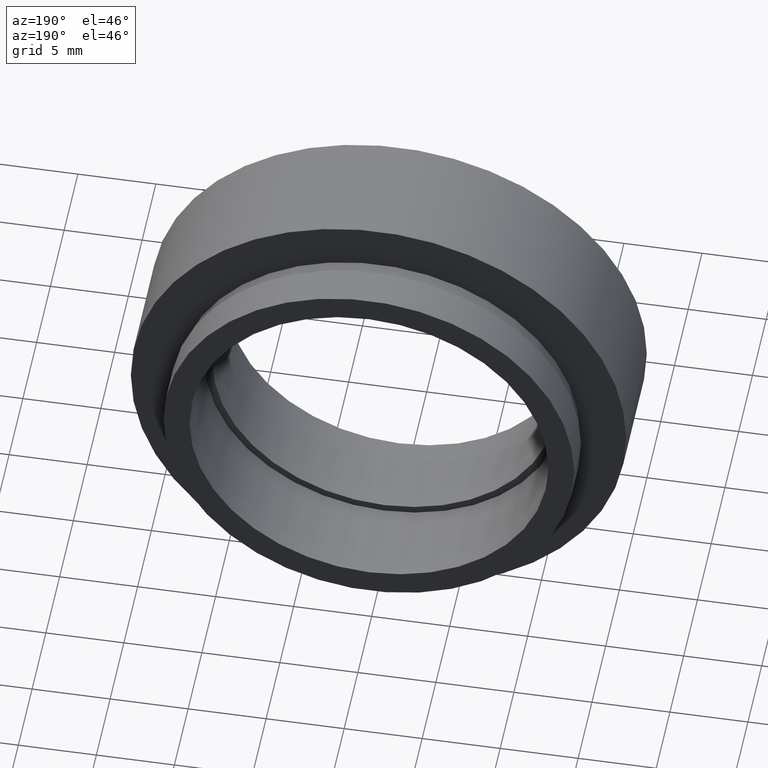
[diagram: clean part render]
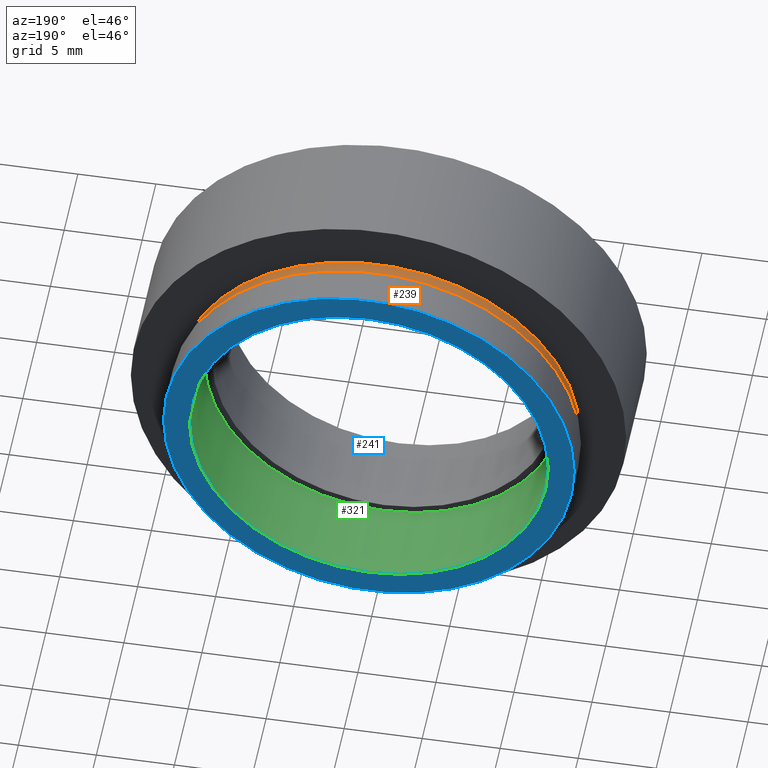
[diagram: same view with three faces highlighted in distinct colors, each labeled with its STEP entity id]
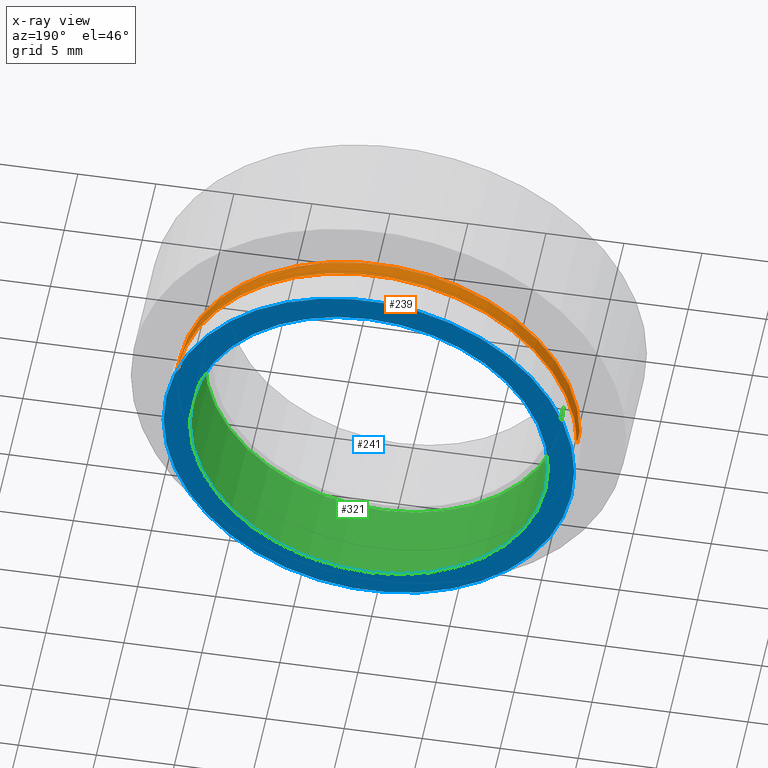
[diagram: x-ray of the same camera — body ghosted, the three highlighted faces saturated]
A machine part, auxiliary view with three faces highlighted in distinct colors.
The next image is the same camera in x-ray (body ghosted, the three faces saturated) — at least one of them is partly hidden behind the body in this view.
Their STEP definitions:

[orange] entity #239 — the highlighted cylindrical surface (partial cylindrical patch) has radius 12.9 mm, axis along (-0, 1, -0).
#12 = DIRECTION ( 'NONE',  ( -1.224646799147351000E-016, 1.000000000000000000, -0.0000000000000000000 ) ) ;
#15 = CARTESIAN_POINT ( 'NONE',  ( 0.0000000000000000000, 16.88601823708207700, 0.0000000000000000000 ) ) ;
#23 = CIRCLE ( 'NONE', #487, 12.90000000000000000 ) ;
#31 = FACE_OUTER_BOUND ( 'NONE', #328, .T. ) ;
#43 = VERTEX_POINT ( 'NONE', #227 ) ;
#57 = AXIS2_PLACEMENT_3D ( 'NONE', #476, #149, #180 ) ;
#58 = CARTESIAN_POINT ( 'NONE',  ( -12.89999999999999900, 8.499999999999996400, 0.0000000000000000000 ) ) ;
#59 = CARTESIAN_POINT ( 'NONE',  ( 12.90000000000000200, 7.500000000000000000, 1.579794370900085700E-015 ) ) ;
#80 = VERTEX_POINT ( 'NONE', #58 ) ;
#84 = ORIENTED_EDGE ( 'NONE', *, *, #403, .F. ) ;
#88 = VECTOR ( 'NONE', #12, 1000.000000000000000 ) ;
#99 = ORIENTED_EDGE ( 'NONE', *, *, #156, .T. ) ;
#108 = DIRECTION ( 'NONE',  ( -1.224646799147351000E-016, 1.000000000000000000, -0.0000000000000000000 ) ) ;
#114 = CYLINDRICAL_SURFACE ( 'NONE', #386, 12.90000000000000000 ) ;
#149 = DIRECTION ( 'NONE',  ( -1.224646799147351000E-016, 1.000000000000000000, -0.0000000000000000000 ) ) ;
#156 = EDGE_CURVE ( 'NONE', #279, #543, #176, .T. ) ;
#176 = CIRCLE ( 'NONE', #57, 12.90000000000000000 ) ;
#180 = DIRECTION ( 'NONE',  ( -1.000000000000000000, -1.344746880602176000E-016, 0.0000000000000000000 ) ) ;
#217 = CARTESIAN_POINT ( 'NONE',  ( 1.026991039163387700E-015, 8.499999999999998200, 0.0000000000000000000 ) ) ;
#227 = CARTESIAN_POINT ( 'NONE',  ( 12.90000000000000200, 8.500000000000000000, 1.579794370900085700E-015 ) ) ;
#232 = EDGE_CURVE ( 'NONE', #279, #80, #468, .T. ) ;
#239 = ADVANCED_FACE ( 'NONE', ( #31 ), #114, .T. ) ;
#269 = ORIENTED_EDGE ( 'NONE', *, *, #360, .T. ) ;
#279 = VERTEX_POINT ( 'NONE', #399 ) ;
#291 = DIRECTION ( 'NONE',  ( -1.000000000000000000, -1.344746880602176000E-016, 0.0000000000000000000 ) ) ;
#318 = ORIENTED_EDGE ( 'NONE', *, *, #232, .F. ) ;
#320 = VECTOR ( 'NONE', #439, 1000.000000000000000 ) ;
#328 = EDGE_LOOP ( 'NONE', ( #99, #269, #84, #318 ) ) ;
#351 = LINE ( 'NONE', #377, #88 ) ;
#360 = EDGE_CURVE ( 'NONE', #543, #43, #351, .T. ) ;
#377 = CARTESIAN_POINT ( 'NONE',  ( 12.90000000000000000, 16.88601823708207700, 1.579794370900085700E-015 ) ) ;
#380 = CARTESIAN_POINT ( 'NONE',  ( -12.90000000000000000, 16.88601823708207700, 0.0000000000000000000 ) ) ;
#386 = AXIS2_PLACEMENT_3D ( 'NONE', #15, #108, #392 ) ;
#392 = DIRECTION ( 'NONE',  ( -1.000000000000000000, 0.0000000000000000000, 0.0000000000000000000 ) ) ;
#399 = CARTESIAN_POINT ( 'NONE',  ( -12.89999999999999900, 7.499999999999996400, 0.0000000000000000000 ) ) ;
#403 = EDGE_CURVE ( 'NONE', #80, #43, #23, .T. ) ;
#423 = DIRECTION ( 'NONE',  ( -1.224646799147351000E-016, 1.000000000000000000, -0.0000000000000000000 ) ) ;
#439 = DIRECTION ( 'NONE',  ( -1.224646799147351000E-016, 1.000000000000000000, -0.0000000000000000000 ) ) ;
#468 = LINE ( 'NONE', #380, #320 ) ;
#476 = CARTESIAN_POINT ( 'NONE',  ( 1.149455719078122700E-015, 7.499999999999998200, 0.0000000000000000000 ) ) ;
#487 = AXIS2_PLACEMENT_3D ( 'NONE', #217, #423, #291 ) ;
#543 = VERTEX_POINT ( 'NONE', #59 ) ;

[blue] entity #241 — the highlighted planar face has unit normal (0, -1, 0).
#41 = AXIS2_PLACEMENT_3D ( 'NONE', #60, #188, #477 ) ;
#48 = CARTESIAN_POINT ( 'NONE',  ( -11.50000000000000200, 10.99999999999999500, 0.0000000000000000000 ) ) ;
#55 = DIRECTION ( 'NONE',  ( -1.000000000000000000, -1.318178933113075200E-016, 0.0000000000000000000 ) ) ;
#60 = CARTESIAN_POINT ( 'NONE',  ( 11.50000000000000200, 10.99999999999999800, 0.0000000000000000000 ) ) ;
#64 = CARTESIAN_POINT ( 'NONE',  ( 7.208293393765502500E-016, 10.99999999999999600, 0.0000000000000000000 ) ) ;
#77 = AXIS2_PLACEMENT_3D ( 'NONE', #64, #268, #55 ) ;
#78 = ORIENTED_EDGE ( 'NONE', *, *, #424, .F. ) ;
#107 = DIRECTION ( 'NONE',  ( -1.000000000000000000, -1.508455196501571200E-016, 0.0000000000000000000 ) ) ;
#113 = AXIS2_PLACEMENT_3D ( 'NONE', #514, #218, #463 ) ;
#135 = CIRCLE ( 'NONE', #77, 13.16000000000000000 ) ;
#140 = CARTESIAN_POINT ( 'NONE',  ( -13.16000000000000000, 10.99999999999999500, 0.0000000000000000000 ) ) ;
#145 = DIRECTION ( 'NONE',  ( -1.000000000000000000, -1.508455196501571200E-016, 0.0000000000000000000 ) ) ;
#169 = CIRCLE ( 'NONE', #337, 11.50000000000000200 ) ;
#188 = DIRECTION ( 'NONE',  ( 1.224646799147351000E-016, -1.000000000000000000, 0.0000000000000000000 ) ) ;
#203 = CIRCLE ( 'NONE', #113, 13.16000000000000000 ) ;
#205 = VERTEX_POINT ( 'NONE', #140 ) ;
#218 = DIRECTION ( 'NONE',  ( -1.224646799147351000E-016, 1.000000000000000000, -0.0000000000000000000 ) ) ;
#238 = VERTEX_POINT ( 'NONE', #527 ) ;
#241 = ADVANCED_FACE ( 'NONE', ( #537, #507 ), #523, .F. ) ;
#268 = DIRECTION ( 'NONE',  ( -1.224646799147351000E-016, 1.000000000000000000, -0.0000000000000000000 ) ) ;
#272 = EDGE_LOOP ( 'NONE', ( #316, #347 ) ) ;
#276 = EDGE_CURVE ( 'NONE', #205, #504, #135, .T. ) ;
#316 = ORIENTED_EDGE ( 'NONE', *, *, #276, .T. ) ;
#336 = EDGE_CURVE ( 'NONE', #504, #205, #203, .T. ) ;
#337 = AXIS2_PLACEMENT_3D ( 'NONE', #376, #349, #107 ) ;
#347 = ORIENTED_EDGE ( 'NONE', *, *, #336, .T. ) ;
#349 = DIRECTION ( 'NONE',  ( -1.224646799147351000E-016, 1.000000000000000000, -0.0000000000000000000 ) ) ;
#376 = CARTESIAN_POINT ( 'NONE',  ( 7.208293393765502500E-016, 10.99999999999999600, 0.0000000000000000000 ) ) ;
#388 = CARTESIAN_POINT ( 'NONE',  ( 7.208293393765502500E-016, 10.99999999999999600, 0.0000000000000000000 ) ) ;
#408 = VERTEX_POINT ( 'NONE', #48 ) ;
#424 = EDGE_CURVE ( 'NONE', #238, #408, #169, .T. ) ;
#449 = EDGE_CURVE ( 'NONE', #408, #238, #540, .T. ) ;
#463 = DIRECTION ( 'NONE',  ( -1.000000000000000000, -1.318178933113075200E-016, 0.0000000000000000000 ) ) ;
#477 = DIRECTION ( 'NONE',  ( 1.000000000000000000, 1.224646799147351000E-016, 0.0000000000000000000 ) ) ;
#480 = DIRECTION ( 'NONE',  ( -1.224646799147351000E-016, 1.000000000000000000, -0.0000000000000000000 ) ) ;
#492 = AXIS2_PLACEMENT_3D ( 'NONE', #388, #480, #145 ) ;
#498 = EDGE_LOOP ( 'NONE', ( #516, #78 ) ) ;
#504 = VERTEX_POINT ( 'NONE', #520 ) ;
#507 = FACE_OUTER_BOUND ( 'NONE', #272, .T. ) ;
#514 = CARTESIAN_POINT ( 'NONE',  ( 7.208293393765502500E-016, 10.99999999999999600, 0.0000000000000000000 ) ) ;
#516 = ORIENTED_EDGE ( 'NONE', *, *, #449, .F. ) ;
#520 = CARTESIAN_POINT ( 'NONE',  ( 13.16000000000000200, 10.99999999999999800, 1.611635187677917100E-015 ) ) ;
#523 = PLANE ( 'NONE',  #41 ) ;
#527 = CARTESIAN_POINT ( 'NONE',  ( 11.50000000000000200, 10.99999999999999800, 1.408343819019456600E-015 ) ) ;
#537 = FACE_BOUND ( 'NONE', #498, .T. ) ;
#540 = CIRCLE ( 'NONE', #492, 11.50000000000000200 ) ;

[green] entity #321 — the highlighted cylindrical surface (partial cylindrical patch) has radius 11.5 mm, axis along (-0, 1, -0).
#2 = FACE_OUTER_BOUND ( 'NONE', #67, .T. ) ;
#6 = LINE ( 'NONE', #264, #129 ) ;
#24 = LINE ( 'NONE', #512, #409 ) ;
#48 = CARTESIAN_POINT ( 'NONE',  ( -11.50000000000000200, 10.99999999999999500, 0.0000000000000000000 ) ) ;
#67 = EDGE_LOOP ( 'NONE', ( #117, #393, #378, #329 ) ) ;
#73 = CARTESIAN_POINT ( 'NONE',  ( 0.0000000000000000000, 16.88601823708207700, 0.0000000000000000000 ) ) ;
#85 = EDGE_CURVE ( 'NONE', #162, #238, #6, .T. ) ;
#107 = DIRECTION ( 'NONE',  ( -1.000000000000000000, -1.508455196501571200E-016, 0.0000000000000000000 ) ) ;
#117 = ORIENTED_EDGE ( 'NONE', *, *, #281, .F. ) ;
#129 = VECTOR ( 'NONE', #433, 1000.000000000000000 ) ;
#131 = CARTESIAN_POINT ( 'NONE',  ( -11.49999999999999800, 5.499999999999996400, 0.0000000000000000000 ) ) ;
#138 = EDGE_CURVE ( 'NONE', #395, #408, #24, .T. ) ;
#151 = AXIS2_PLACEMENT_3D ( 'NONE', #157, #158, #273 ) ;
#157 = CARTESIAN_POINT ( 'NONE',  ( 1.394385078907593000E-015, 5.499999999999998200, 0.0000000000000000000 ) ) ;
#158 = DIRECTION ( 'NONE',  ( -1.224646799147351000E-016, 1.000000000000000000, -0.0000000000000000000 ) ) ;
#162 = VERTEX_POINT ( 'NONE', #469 ) ;
#169 = CIRCLE ( 'NONE', #337, 11.50000000000000200 ) ;
#190 = DIRECTION ( 'NONE',  ( -1.224646799147351000E-016, 1.000000000000000000, -0.0000000000000000000 ) ) ;
#238 = VERTEX_POINT ( 'NONE', #527 ) ;
#264 = CARTESIAN_POINT ( 'NONE',  ( 11.50000000000000000, 16.88601823708207700, 1.408343819019456200E-015 ) ) ;
#273 = DIRECTION ( 'NONE',  ( -1.000000000000000000, -1.508455196501571400E-016, 0.0000000000000000000 ) ) ;
#281 = EDGE_CURVE ( 'NONE', #162, #395, #368, .T. ) ;
#304 = CYLINDRICAL_SURFACE ( 'NONE', #352, 11.50000000000000000 ) ;
#311 = DIRECTION ( 'NONE',  ( -1.224646799147351000E-016, 1.000000000000000000, -0.0000000000000000000 ) ) ;
#321 = ADVANCED_FACE ( 'NONE', ( #2 ), #304, .F. ) ;
#329 = ORIENTED_EDGE ( 'NONE', *, *, #138, .F. ) ;
#337 = AXIS2_PLACEMENT_3D ( 'NONE', #376, #349, #107 ) ;
#349 = DIRECTION ( 'NONE',  ( -1.224646799147351000E-016, 1.000000000000000000, -0.0000000000000000000 ) ) ;
#352 = AXIS2_PLACEMENT_3D ( 'NONE', #73, #311, #529 ) ;
#368 = CIRCLE ( 'NONE', #151, 11.50000000000000000 ) ;
#376 = CARTESIAN_POINT ( 'NONE',  ( 7.208293393765502500E-016, 10.99999999999999600, 0.0000000000000000000 ) ) ;
#378 = ORIENTED_EDGE ( 'NONE', *, *, #424, .T. ) ;
#393 = ORIENTED_EDGE ( 'NONE', *, *, #85, .T. ) ;
#395 = VERTEX_POINT ( 'NONE', #131 ) ;
#408 = VERTEX_POINT ( 'NONE', #48 ) ;
#409 = VECTOR ( 'NONE', #190, 1000.000000000000000 ) ;
#424 = EDGE_CURVE ( 'NONE', #238, #408, #169, .T. ) ;
#433 = DIRECTION ( 'NONE',  ( -1.224646799147351000E-016, 1.000000000000000000, -0.0000000000000000000 ) ) ;
#469 = CARTESIAN_POINT ( 'NONE',  ( 11.50000000000000200, 5.500000000000000000, 1.408343819019456600E-015 ) ) ;
#512 = CARTESIAN_POINT ( 'NONE',  ( -11.50000000000000000, 16.88601823708207700, 0.0000000000000000000 ) ) ;
#527 = CARTESIAN_POINT ( 'NONE',  ( 11.50000000000000200, 10.99999999999999800, 1.408343819019456600E-015 ) ) ;
#529 = DIRECTION ( 'NONE',  ( -1.000000000000000000, 0.0000000000000000000, 0.0000000000000000000 ) ) ;